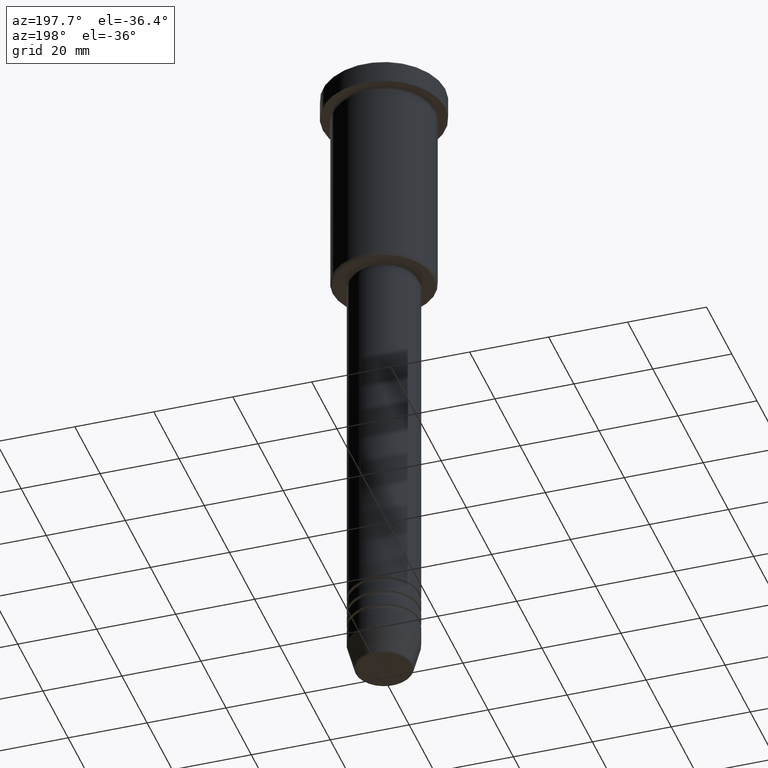
[diagram: clean part render]
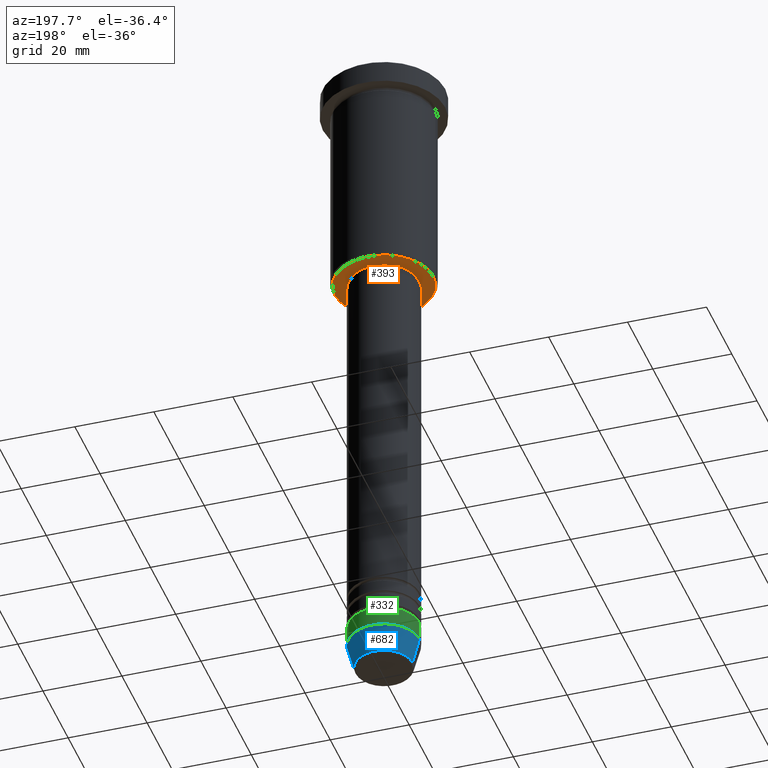
[diagram: same view with three faces highlighted in distinct colors, each labeled with its STEP entity id]
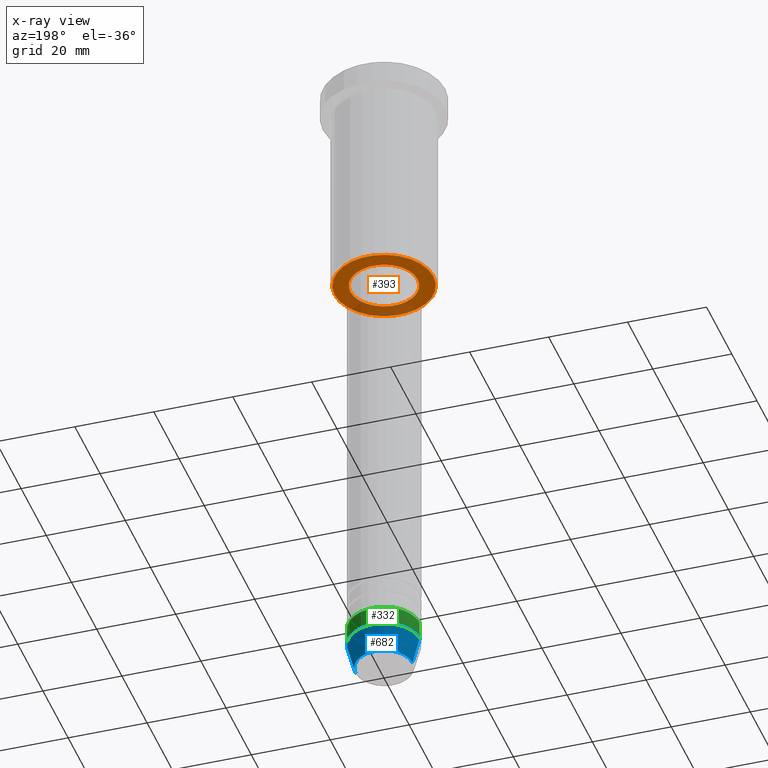
[diagram: x-ray of the same camera — body ghosted, the three highlighted faces saturated]
A machine part, auxiliary view with three faces highlighted in distinct colors.
The next image is the same camera in x-ray (body ghosted, the three faces saturated) — at least one of them is partly hidden behind the body in this view.
Their STEP definitions:

[orange] entity #393 — the highlighted planar face has unit normal (0, 0, -1).
#23 = DIRECTION ( 'NONE',  ( 0.000000000000000000, 0.000000000000000000, -1.000000000000000000 ) ) ;
#37 = EDGE_CURVE ( 'NONE', #164, #1172, #623, .T. ) ;
#104 = ORIENTED_EDGE ( 'NONE', *, *, #37, .T. ) ;
#124 = CARTESIAN_POINT ( 'NONE',  ( 0.000000000000000000, 0.000000000000000000, -55.99999999999998579 ) ) ;
#131 = AXIS2_PLACEMENT_3D ( 'NONE', #649, #737, #293 ) ;
#164 = VERTEX_POINT ( 'NONE', #419 ) ;
#175 = VERTEX_POINT ( 'NONE', #424 ) ;
#195 = CARTESIAN_POINT ( 'NONE',  ( 8.500000000000000000, 0.000000000000000000, -55.99999999999998579 ) ) ;
#198 = CARTESIAN_POINT ( 'NONE',  ( 0.000000000000000000, 13.00000000000000000, -55.99999999999999289 ) ) ;
#201 = DIRECTION ( 'NONE',  ( -0.000000000000000000, -0.000000000000000000, 1.000000000000000000 ) ) ;
#204 = FACE_OUTER_BOUND ( 'NONE', #707, .T. ) ;
#265 = AXIS2_PLACEMENT_3D ( 'NONE', #198, #23, #573 ) ;
#278 = DIRECTION ( 'NONE',  ( 0.000000000000000000, 0.000000000000000000, -1.000000000000000000 ) ) ;
#293 = DIRECTION ( 'NONE',  ( -1.000000000000000000, 0.000000000000000000, 0.000000000000000000 ) ) ;
#294 = DIRECTION ( 'NONE',  ( -0.000000000000000000, -0.000000000000000000, 1.000000000000000000 ) ) ;
#300 = DIRECTION ( 'NONE',  ( 1.000000000000000000, 0.000000000000000000, 0.000000000000000000 ) ) ;
#361 = AXIS2_PLACEMENT_3D ( 'NONE', #1100, #278, #733 ) ;
#393 = ADVANCED_FACE ( 'NONE', ( #204, #750 ), #653, .T. ) ;
#396 = ORIENTED_EDGE ( 'NONE', *, *, #1148, .T. ) ;
#419 = CARTESIAN_POINT ( 'NONE',  ( -12.49999999999996980, 1.561424668912873336E-15, -55.99999999999999289 ) ) ;
#424 = CARTESIAN_POINT ( 'NONE',  ( -8.500000000000000000, 1.040949779275250140E-15, -55.99999999999998579 ) ) ;
#493 = EDGE_LOOP ( 'NONE', ( #618, #396 ) ) ;
#573 = DIRECTION ( 'NONE',  ( -1.000000000000000000, 0.000000000000000000, -0.000000000000000000 ) ) ;
#618 = ORIENTED_EDGE ( 'NONE', *, *, #1134, .T. ) ;
#623 = CIRCLE ( 'NONE', #131, 12.49999999999996980 ) ;
#648 = AXIS2_PLACEMENT_3D ( 'NONE', #825, #201, #848 ) ;
#649 = CARTESIAN_POINT ( 'NONE',  ( 0.000000000000000000, 0.000000000000000000, -55.99999999999999289 ) ) ;
#653 = PLANE ( 'NONE',  #265 ) ;
#669 = CARTESIAN_POINT ( 'NONE',  ( 12.49999999999996980, 0.000000000000000000, -55.99999999999999289 ) ) ;
#703 = CIRCLE ( 'NONE', #857, 8.500000000000000000 ) ;
#707 = EDGE_LOOP ( 'NONE', ( #768, #104 ) ) ;
#733 = DIRECTION ( 'NONE',  ( -1.000000000000000000, 0.000000000000000000, 0.000000000000000000 ) ) ;
#737 = DIRECTION ( 'NONE',  ( 0.000000000000000000, 0.000000000000000000, -1.000000000000000000 ) ) ;
#750 = FACE_BOUND ( 'NONE', #493, .T. ) ;
#768 = ORIENTED_EDGE ( 'NONE', *, *, #1060, .T. ) ;
#825 = CARTESIAN_POINT ( 'NONE',  ( 0.000000000000000000, 0.000000000000000000, -55.99999999999998579 ) ) ;
#848 = DIRECTION ( 'NONE',  ( 1.000000000000000000, 0.000000000000000000, 0.000000000000000000 ) ) ;
#857 = AXIS2_PLACEMENT_3D ( 'NONE', #124, #294, #300 ) ;
#858 = CIRCLE ( 'NONE', #648, 8.500000000000000000 ) ;
#879 = CIRCLE ( 'NONE', #361, 12.49999999999996980 ) ;
#1060 = EDGE_CURVE ( 'NONE', #1172, #164, #879, .T. ) ;
#1100 = CARTESIAN_POINT ( 'NONE',  ( 0.000000000000000000, 0.000000000000000000, -55.99999999999999289 ) ) ;
#1128 = VERTEX_POINT ( 'NONE', #195 ) ;
#1134 = EDGE_CURVE ( 'NONE', #1128, #175, #703, .T. ) ;
#1148 = EDGE_CURVE ( 'NONE', #175, #1128, #858, .T. ) ;
#1172 = VERTEX_POINT ( 'NONE', #669 ) ;

[blue] entity #682 — the highlighted conical surface has half-angle 15 deg.
#72 = ORIENTED_EDGE ( 'NONE', *, *, #1138, .T. ) ;
#127 = DIRECTION ( 'NONE',  ( 1.000000000000000000, 0.000000000000000000, 0.000000000000000000 ) ) ;
#191 = CARTESIAN_POINT ( 'NONE',  ( 0.000000000000000000, 0.000000000000000000, -164.0000000000000000 ) ) ;
#197 = CARTESIAN_POINT ( 'NONE',  ( 9.000000000000000000, 0.000000000000000000, -164.0000000000000000 ) ) ;
#289 = ORIENTED_EDGE ( 'NONE', *, *, #458, .F. ) ;
#292 = EDGE_CURVE ( 'NONE', #903, #715, #445, .T. ) ;
#302 = CARTESIAN_POINT ( 'NONE',  ( 0.000000000000000000, 0.000000000000000000, -164.0000000000000000 ) ) ;
#344 = CIRCLE ( 'NONE', #821, 7.223655072137188604 ) ;
#373 = DIRECTION ( 'NONE',  ( -0.000000000000000000, -0.000000000000000000, 1.000000000000000000 ) ) ;
#386 = DIRECTION ( 'NONE',  ( 0.2588190451025213501, 0.000000000000000000, 0.9659258262890680902 ) ) ;
#427 = CARTESIAN_POINT ( 'NONE',  ( -7.223655072137189492, 9.934123627281765110E-16, -170.6294095225512990 ) ) ;
#445 = LINE ( 'NONE', #1181, #683 ) ;
#458 = EDGE_CURVE ( 'NONE', #816, #715, #1145, .T. ) ;
#467 = LINE ( 'NONE', #197, #626 ) ;
#477 = DIRECTION ( 'NONE',  ( 1.000000000000000000, 0.000000000000000000, 0.000000000000000000 ) ) ;
#485 = FACE_OUTER_BOUND ( 'NONE', #562, .T. ) ;
#540 = DIRECTION ( 'NONE',  ( -0.2588190451025213501, 3.169619151431772337E-17, 0.9659258262890680902 ) ) ;
#562 = EDGE_LOOP ( 'NONE', ( #72, #654, #289, #735 ) ) ;
#626 = VECTOR ( 'NONE', #386, 1000.000000000000000 ) ;
#654 = ORIENTED_EDGE ( 'NONE', *, *, #292, .T. ) ;
#661 = CARTESIAN_POINT ( 'NONE',  ( 0.000000000000000000, 0.000000000000000000, -170.6294095225512990 ) ) ;
#671 = DIRECTION ( 'NONE',  ( -0.000000000000000000, -0.000000000000000000, 1.000000000000000000 ) ) ;
#682 = ADVANCED_FACE ( 'NONE', ( #485 ), #910, .T. ) ;
#683 = VECTOR ( 'NONE', #540, 1000.000000000000000 ) ;
#711 = CARTESIAN_POINT ( 'NONE',  ( 7.223655072137188604, 0.000000000000000000, -170.6294095225512990 ) ) ;
#715 = VERTEX_POINT ( 'NONE', #1011 ) ;
#735 = ORIENTED_EDGE ( 'NONE', *, *, #739, .F. ) ;
#739 = EDGE_CURVE ( 'NONE', #1010, #816, #467, .T. ) ;
#742 = DIRECTION ( 'NONE',  ( 1.000000000000000000, 0.000000000000000000, 0.000000000000000000 ) ) ;
#762 = AXIS2_PLACEMENT_3D ( 'NONE', #302, #373, #127 ) ;
#816 = VERTEX_POINT ( 'NONE', #886 ) ;
#821 = AXIS2_PLACEMENT_3D ( 'NONE', #661, #1021, #477 ) ;
#886 = CARTESIAN_POINT ( 'NONE',  ( 9.000000000000000000, 0.000000000000000000, -164.0000000000000000 ) ) ;
#903 = VERTEX_POINT ( 'NONE', #427 ) ;
#910 = CONICAL_SURFACE ( 'NONE', #1050, 9.000000000000000000, 0.2617993877991500740 ) ;
#1010 = VERTEX_POINT ( 'NONE', #711 ) ;
#1011 = CARTESIAN_POINT ( 'NONE',  ( -9.000000000000000000, 1.102182119232617714E-15, -164.0000000000000000 ) ) ;
#1021 = DIRECTION ( 'NONE',  ( -0.000000000000000000, -0.000000000000000000, 1.000000000000000000 ) ) ;
#1050 = AXIS2_PLACEMENT_3D ( 'NONE', #191, #671, #742 ) ;
#1138 = EDGE_CURVE ( 'NONE', #1010, #903, #344, .T. ) ;
#1145 = CIRCLE ( 'NONE', #762, 9.000000000000000000 ) ;
#1181 = CARTESIAN_POINT ( 'NONE',  ( -9.000000000000000000, 1.102182119232617714E-15, -164.0000000000000000 ) ) ;

[green] entity #332 — the highlighted cylindrical surface (partial cylindrical patch) has radius 9 mm, axis along (-0, -0, 1).
#36 = CARTESIAN_POINT ( 'NONE',  ( 9.000000000000000000, 0.000000000000000000, -159.0000000000000000 ) ) ;
#127 = DIRECTION ( 'NONE',  ( 1.000000000000000000, 0.000000000000000000, 0.000000000000000000 ) ) ;
#169 = FACE_OUTER_BOUND ( 'NONE', #826, .T. ) ;
#230 = DIRECTION ( 'NONE',  ( 1.000000000000000000, 0.000000000000000000, 0.000000000000000000 ) ) ;
#245 = ORIENTED_EDGE ( 'NONE', *, *, #822, .F. ) ;
#247 = CARTESIAN_POINT ( 'NONE',  ( -9.000000000000000000, 1.102182119232617714E-15, 0.000000000000000000 ) ) ;
#266 = DIRECTION ( 'NONE',  ( -0.000000000000000000, -0.000000000000000000, 1.000000000000000000 ) ) ;
#282 = DIRECTION ( 'NONE',  ( 1.000000000000000000, 0.000000000000000000, 0.000000000000000000 ) ) ;
#291 = LINE ( 'NONE', #756, #532 ) ;
#302 = CARTESIAN_POINT ( 'NONE',  ( 0.000000000000000000, 0.000000000000000000, -164.0000000000000000 ) ) ;
#332 = ADVANCED_FACE ( 'NONE', ( #169 ), #1094, .T. ) ;
#364 = CARTESIAN_POINT ( 'NONE',  ( -9.000000000000000000, 1.102182119232617714E-15, -159.0000000000000000 ) ) ;
#373 = DIRECTION ( 'NONE',  ( -0.000000000000000000, -0.000000000000000000, 1.000000000000000000 ) ) ;
#380 = EDGE_CURVE ( 'NONE', #816, #456, #291, .T. ) ;
#394 = VECTOR ( 'NONE', #522, 1000.000000000000000 ) ;
#456 = VERTEX_POINT ( 'NONE', #36 ) ;
#458 = EDGE_CURVE ( 'NONE', #816, #715, #1145, .T. ) ;
#522 = DIRECTION ( 'NONE',  ( -0.000000000000000000, -0.000000000000000000, 1.000000000000000000 ) ) ;
#532 = VECTOR ( 'NONE', #770, 1000.000000000000000 ) ;
#595 = DIRECTION ( 'NONE',  ( -0.000000000000000000, -0.000000000000000000, 1.000000000000000000 ) ) ;
#605 = CIRCLE ( 'NONE', #802, 9.000000000000000000 ) ;
#608 = LINE ( 'NONE', #247, #394 ) ;
#621 = CARTESIAN_POINT ( 'NONE',  ( 0.000000000000000000, 0.000000000000000000, 0.000000000000000000 ) ) ;
#715 = VERTEX_POINT ( 'NONE', #1011 ) ;
#756 = CARTESIAN_POINT ( 'NONE',  ( 9.000000000000000000, 0.000000000000000000, 0.000000000000000000 ) ) ;
#762 = AXIS2_PLACEMENT_3D ( 'NONE', #302, #373, #127 ) ;
#770 = DIRECTION ( 'NONE',  ( -0.000000000000000000, -0.000000000000000000, 1.000000000000000000 ) ) ;
#802 = AXIS2_PLACEMENT_3D ( 'NONE', #1063, #595, #230 ) ;
#811 = ORIENTED_EDGE ( 'NONE', *, *, #458, .T. ) ;
#813 = ORIENTED_EDGE ( 'NONE', *, *, #380, .F. ) ;
#816 = VERTEX_POINT ( 'NONE', #886 ) ;
#822 = EDGE_CURVE ( 'NONE', #456, #941, #605, .T. ) ;
#826 = EDGE_LOOP ( 'NONE', ( #811, #1165, #245, #813 ) ) ;
#854 = AXIS2_PLACEMENT_3D ( 'NONE', #621, #266, #282 ) ;
#886 = CARTESIAN_POINT ( 'NONE',  ( 9.000000000000000000, 0.000000000000000000, -164.0000000000000000 ) ) ;
#895 = EDGE_CURVE ( 'NONE', #715, #941, #608, .T. ) ;
#941 = VERTEX_POINT ( 'NONE', #364 ) ;
#1011 = CARTESIAN_POINT ( 'NONE',  ( -9.000000000000000000, 1.102182119232617714E-15, -164.0000000000000000 ) ) ;
#1063 = CARTESIAN_POINT ( 'NONE',  ( 0.000000000000000000, 0.000000000000000000, -159.0000000000000000 ) ) ;
#1094 = CYLINDRICAL_SURFACE ( 'NONE', #854, 9.000000000000000000 ) ;
#1145 = CIRCLE ( 'NONE', #762, 9.000000000000000000 ) ;
#1165 = ORIENTED_EDGE ( 'NONE', *, *, #895, .T. ) ;